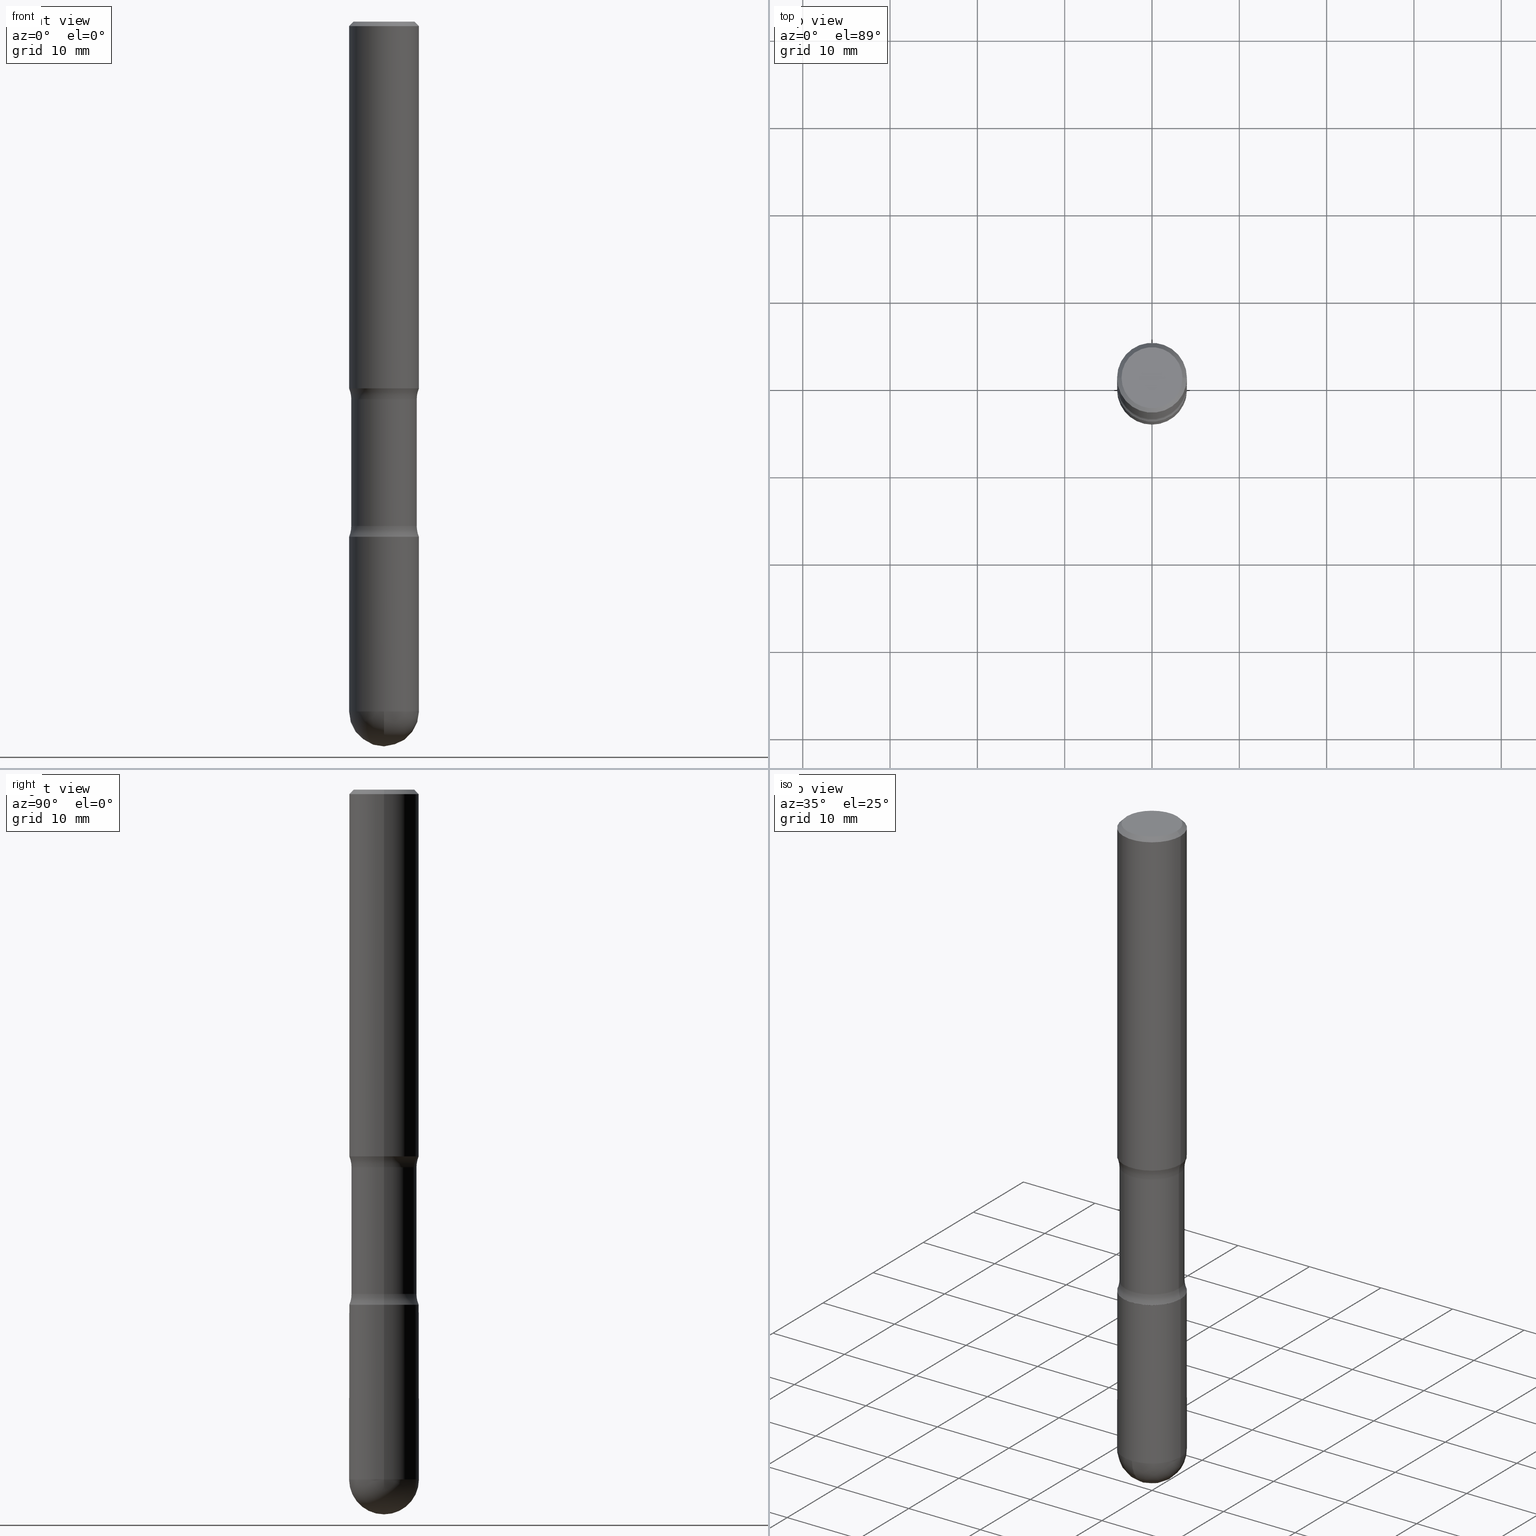
[diagram: canonical four-view strip — front | top / right | iso, engineering-drawing reading convention]
A machine part, canonical four-view strip (front | top / right | iso — engineering-drawing reading convention). The complete STEP part file that produces these views, byte-faithful:
ISO-10303-21;
HEADER;
FILE_DESCRIPTION (( 'STEP AP203' ),
    '1' );
FILE_NAME ('44930.STEP',
    '2024-02-29T19:26:09',
    ( '' ),
    ( '' ),
    'SwSTEP 2.0',
    'SolidWorks 2023',
    '' );
FILE_SCHEMA (( 'CONFIG_CONTROL_DESIGN' ));
ENDSEC;

DATA;
#1 = DIRECTION ( 'NONE',  ( 2.445468806185136597E-29, -3.491481338843145583E-15, -1.000000000000000000 ) ) ;
#2 = VERTEX_POINT ( 'NONE', #517 ) ;
#3 = AXIS2_PLACEMENT_3D ( 'NONE', #345, #522, #561 ) ;
#4 = DIRECTION ( 'NONE',  ( 2.445468806185136597E-29, -3.491481338843145583E-15, -1.000000000000000000 ) ) ;
#5 = EDGE_LOOP ( 'NONE', ( #500, #228, #358, #541 ) ) ;
#6 = CLOSED_SHELL ( 'NONE', ( #437, #188, #328, #446, #356, #372, #322, #111, #266, #260, #231, #336, #213, #346 ) ) ;
#7 = COORDINATED_UNIVERSAL_TIME_OFFSET ( 5, 0, .BEHIND. ) ;
#8 = AXIS2_PLACEMENT_3D ( 'NONE', #48, #52, #219 ) ;
#9 = DIRECTION ( 'NONE',  ( 2.445468806185136597E-29, -3.491481338843145583E-15, -1.000000000000000000 ) ) ;
#10 = ORIENTED_EDGE ( 'NONE', *, *, #440, .F. ) ;
#11 = DIRECTION ( 'NONE',  ( -0.7071067811865469066, 2.468850131082250355E-15, -0.7071067811865481278 ) ) ;
#12 = ORIENTED_EDGE ( 'NONE', *, *, #527, .T. ) ;
#13 = CARTESIAN_POINT ( 'NONE',  ( 5.560531927865903420E-29, -7.938965899332559433E-15, -2.273810205144337626 ) ) ;
#14 = ORIENTED_EDGE ( 'NONE', *, *, #439, .F. ) ;
#15 = APPROVAL_PERSON_ORGANIZATION ( #525, #290, #559 ) ;
#16 = EDGE_CURVE ( 'NONE', #363, #115, #334, .T. ) ;
#17 = DIRECTION ( 'NONE',  ( 2.445468806185136597E-29, -3.491481338843145583E-15, -1.000000000000000000 ) ) ;
#18 = CIRCLE ( 'NONE', #167, 0.1574999999999994182 ) ;
#19 = ORIENTED_EDGE ( 'NONE', *, *, #431, .F. ) ;
#20 = CARTESIAN_POINT ( 'NONE',  ( 7.619357398388695210E-29, -1.083992931945137203E-14, -3.110199999999999854 ) ) ;
#21 = EDGE_CURVE ( 'NONE', #68, #295, #87, .T. ) ;
#22 = ORIENTED_EDGE ( 'NONE', *, *, #171, .F. ) ;
#23 = CARTESIAN_POINT ( 'NONE',  ( 5.680334943006836279E-29, -8.110012853864858834E-15, -2.322799999999999976 ) ) ;
#24 = CYLINDRICAL_SURFACE ( 'NONE', #142, 0.1574999999999994738 ) ;
#25 = APPROVAL_PERSON_ORGANIZATION ( #383, #122, #209 ) ;
#26 = CC_DESIGN_PERSON_AND_ORGANIZATION_ASSIGNMENT ( #563, #392, ( #270 ) ) ;
#27 = DIRECTION ( 'NONE',  ( -1.000000000000000000, 6.982962677686266711E-15, -4.883557194083112901E-29 ) ) ;
#28 = AXIS2_PLACEMENT_3D ( 'NONE', #388, #127, #395 ) ;
#29 = ORIENTED_EDGE ( 'NONE', *, *, #172, .T. ) ;
#30 = DIRECTION ( 'NONE',  ( -2.445468806185136597E-29, 3.491481338843145583E-15, 1.000000000000000000 ) ) ;
#31 = CARTESIAN_POINT ( 'NONE',  ( 0.000000000000000000, 0.000000000000000000, 0.000000000000000000 ) ) ;
#32 = ADVANCED_BREP_SHAPE_REPRESENTATION ( '44930', ( #77, #462, #267 ), #538 ) ;
#33 = AXIS2_PLACEMENT_3D ( 'NONE', #419, #30, #282 ) ;
#34 = CIRCLE ( 'NONE', #125, 0.1574999999999994738 ) ;
#35 = DIRECTION ( 'NONE',  ( -1.000000000000000000, 6.860497997771531562E-15, 0.000000000000000000 ) ) ;
#36 = DIRECTION ( 'NONE',  ( 1.000000000000000000, -6.982962677686261977E-15, 0.000000000000000000 ) ) ;
#37 = DIRECTION ( 'NONE',  ( 2.438088387897960049E-29, -3.491481338843145188E-15, -1.000000000000000000 ) ) ;
#38 = CIRCLE ( 'NONE', #350, 0.1474999999999997424 ) ;
#39 = AXIS2_PLACEMENT_3D ( 'NONE', #75, #117, #83 ) ;
#40 =( CONVERSION_BASED_UNIT ( 'INCH', #340 ) LENGTH_UNIT ( ) NAMED_UNIT ( #496 ) );
#41 = ADVANCED_FACE ( 'NONE', ( #338 ), #24, .T. ) ;
#42 = CARTESIAN_POINT ( 'NONE',  ( 0.000000000000000000, 0.000000000000000000, 0.000000000000000000 ) ) ;
#43 = DIRECTION ( 'NONE',  ( 2.445468806185136597E-29, -3.491481338843145583E-15, -1.000000000000000000 ) ) ;
#44 = AXIS2_PLACEMENT_3D ( 'NONE', #344, #37, #347 ) ;
#45 =( NAMED_UNIT ( * ) SI_UNIT ( $, .STERADIAN. ) SOLID_ANGLE_UNIT ( ) );
#46 = DIRECTION ( 'NONE',  ( -1.000000000000000000, 6.982962677686269866E-15, 0.000000000000000000 ) ) ;
#47 = AXIS2_PLACEMENT_3D ( 'NONE', #23, #64, #502 ) ;
#48 = CARTESIAN_POINT ( 'NONE',  ( 5.679476400061730502E-29, -8.108787082076705030E-15, -2.322448925006553644 ) ) ;
#49 = EDGE_CURVE ( 'NONE', #164, #441, #548, .T. ) ;
#50 = EDGE_CURVE ( 'NONE', #68, #363, #327, .T. ) ;
#51 = AXIS2_PLACEMENT_3D ( 'NONE', #331, #297, #387 ) ;
#52 = DIRECTION ( 'NONE',  ( 2.445468806185136597E-29, -3.491481338843145583E-15, -1.000000000000000000 ) ) ;
#53 = ORIENTED_EDGE ( 'NONE', *, *, #552, .F. ) ;
#54 = CIRCLE ( 'NONE', #454, 0.1374999999999997335 ) ;
#55 = FACE_OUTER_BOUND ( 'NONE', #58, .T. ) ;
#56 = VERTEX_POINT ( 'NONE', #339 ) ;
#57 = DIRECTION ( 'NONE',  ( -2.438088387897960049E-29, 3.491481338843145188E-15, 1.000000000000000000 ) ) ;
#58 = EDGE_LOOP ( 'NONE', ( #535, #411, #369, #157 ) ) ;
#59 = DIRECTION ( 'NONE',  ( 2.445468806185136597E-29, -3.491481338843145583E-15, -1.000000000000000000 ) ) ;
#60 = EDGE_LOOP ( 'NONE', ( #19, #514, #137, #504 ) ) ;
#61 = DIRECTION ( 'NONE',  ( -1.000000000000000000, 7.105427357601001070E-15, -4.926315508542082329E-29 ) ) ;
#62 = VECTOR ( 'NONE', #11, 39.37007874015748143 ) ;
#63 = VERTEX_POINT ( 'NONE', #121 ) ;
#64 = DIRECTION ( 'NONE',  ( -2.445468806185136597E-29, 3.491481338843145583E-15, 1.000000000000000000 ) ) ;
#65 = ORIENTED_EDGE ( 'NONE', *, *, #171, .T. ) ;
#66 = EDGE_CURVE ( 'NONE', #295, #451, #480, .T. ) ;
#67 = CARTESIAN_POINT ( 'NONE',  ( -0.1574999999999994182, -8.365504248145252306E-15, -3.110199999999999854 ) ) ;
#68 = VERTEX_POINT ( 'NONE', #254 ) ;
#69 = DIRECTION ( 'NONE',  ( -1.000000000000000000, 6.982962677686265922E-15, -4.876176775795935793E-29 ) ) ;
#70 = AXIS2_PLACEMENT_3D ( 'NONE', #86, #78, #341 ) ;
#71 = EDGE_LOOP ( 'NONE', ( #557, #293, #74, #459, #352 ) ) ;
#72 = DIRECTION ( 'NONE',  ( -2.445468806185136597E-29, 3.491481338843145583E-15, 1.000000000000000000 ) ) ;
#73 = EDGE_CURVE ( 'NONE', #453, #355, #128, .T. ) ;
#74 = ORIENTED_EDGE ( 'NONE', *, *, #440, .T. ) ;
#75 = CARTESIAN_POINT ( 'NONE',  ( 0.2724999999999879741, -7.813697052702104664E-15, -1.702489794855663430 ) ) ;
#76 =( NAMED_UNIT ( * ) PLANE_ANGLE_UNIT ( ) SI_UNIT ( $, .RADIAN. ) );
#77 = MANIFOLD_SOLID_BREP ( 'Body-Move/Copy2[1]', #175 ) ;
#78 = DIRECTION ( 'NONE',  ( 2.445468806185136597E-29, -3.491481338843145583E-15, -1.000000000000000000 ) ) ;
#79 = VECTOR ( 'NONE', #487, 39.37007874015748143 ) ;
#80 = DIRECTION ( 'NONE',  ( 2.445468806185136597E-29, -3.491481338843145583E-15, -1.000000000000000000 ) ) ;
#81 = CIRCLE ( 'NONE', #33, 0.1574999999999994182 ) ;
#82 = APPROVAL_STATUS ( 'not_yet_approved' ) ;
#83 = DIRECTION ( 'NONE',  ( -1.000000000000000000, 6.860497997771532351E-15, 0.000000000000000000 ) ) ;
#84 = DATE_AND_TIME ( #342, #323 ) ;
#85 = APPROVAL_PERSON_ORGANIZATION ( #532, #371, #396 ) ;
#86 = CARTESIAN_POINT ( 'NONE',  ( 4.043582671027126564E-29, -5.773164393777145805E-15, -1.653500000000001302 ) ) ;
#87 = CIRCLE ( 'NONE', #491, 0.1574999999999994182 ) ;
#88 = CIRCLE ( 'NONE', #70, 0.1575000000000000011 ) ;
#89 = DATE_AND_TIME ( #218, #426 ) ;
#90 = DIRECTION ( 'NONE',  ( -2.445468806185136597E-29, 3.491481338843145583E-15, 1.000000000000000000 ) ) ;
#91 = APPLICATION_CONTEXT ( 'configuration controlled 3d designs of mechanical parts and assemblies' ) ;
#92 = AXIS2_PLACEMENT_3D ( 'NONE', #547, #27, #373 ) ;
#93 = PERSON_AND_ORGANIZATION_ROLE ( 'creator' ) ;
#94 = FACE_OUTER_BOUND ( 'NONE', #5, .T. ) ;
#95 = ORIENTED_EDGE ( 'NONE', *, *, #49, .T. ) ;
#96 = DIRECTION ( 'NONE',  ( -1.000000000000000000, 6.982962677686265133E-15, 0.000000000000000000 ) ) ;
#97 = EDGE_LOOP ( 'NONE', ( #275, #201 ) ) ;
#98 = EDGE_CURVE ( 'NONE', #320, #149, #38, .T. ) ;
#99 = FACE_OUTER_BOUND ( 'NONE', #466, .T. ) ;
#100 = ORIENTED_EDGE ( 'NONE', *, *, #542, .T. ) ;
#101 = DIRECTION ( 'NONE',  ( 2.445468806185136597E-29, -3.491481338843145583E-15, -1.000000000000000000 ) ) ;
#102 = EDGE_LOOP ( 'NONE', ( #151, #181, #269, #277 ) ) ;
#103 = DIRECTION ( 'NONE',  ( 6.860497997771531562E-15, 1.000000000000000000, -3.491481338843145583E-15 ) ) ;
#104 = ORIENTED_EDGE ( 'NONE', *, *, #248, .T. ) ;
#105 = VECTOR ( 'NONE', #425, 39.37007874015748143 ) ;
#106 = AXIS2_PLACEMENT_3D ( 'NONE', #564, #168, #470 ) ;
#107 = VERTEX_POINT ( 'NONE', #348 ) ;
#108 = CARTESIAN_POINT ( 'NONE',  ( 0.2724999999999985767, -9.808451603725290676E-15, -2.273810205144337626 ) ) ;
#109 = VERTEX_POINT ( 'NONE', #247 ) ;
#110 = DIRECTION ( 'NONE',  ( 2.438088387897960049E-29, -3.491481338843145188E-15, -1.000000000000000000 ) ) ;
#111 = ADVANCED_FACE ( 'NONE', ( #178 ), #528, .T. ) ;
#112 = DIRECTION ( 'NONE',  ( -2.445468806185136597E-29, 3.491481338843145583E-15, 1.000000000000000000 ) ) ;
#113 = DIRECTION ( 'NONE',  ( -2.445468806185136597E-29, 3.491481338843145583E-15, 1.000000000000000000 ) ) ;
#114 = CIRCLE ( 'NONE', #435, 0.1374999999999997335 ) ;
#115 = VERTEX_POINT ( 'NONE', #208 ) ;
#116 = ORIENTED_EDGE ( 'NONE', *, *, #420, .F. ) ;
#117 = DIRECTION ( 'NONE',  ( 6.860497997771531562E-15, 1.000000000000000000, -3.491481338843145583E-15 ) ) ;
#118 = DIRECTION ( 'NONE',  ( 1.000000000000000000, 0.000000000000000000, 0.000000000000000000 ) ) ;
#119 = LINE ( 'NONE', #349, #79 ) ;
#120 = AXIS2_PLACEMENT_3D ( 'NONE', #438, #90, #319 ) ;
#121 = CARTESIAN_POINT ( 'NONE',  ( 0.1374999999999997335, -1.046838268059730717E-15, 7.017535886221985357E-30 ) ) ;
#122 = APPROVAL ( #82, 'UNSPECIFIED' ) ;
#123 = APPROVAL_STATUS ( 'not_yet_approved' ) ;
#124 = CARTESIAN_POINT ( 'NONE',  ( 4.890937612370288047E-31, -6.982962677686311331E-17, -0.02000000000000005940 ) ) ;
#125 = AXIS2_PLACEMENT_3D ( 'NONE', #20, #61, #452 ) ;
#126 = CC_DESIGN_SECURITY_CLASSIFICATION ( #314, ( #239 ) ) ;
#127 = DIRECTION ( 'NONE',  ( -6.982962677686266711E-15, -1.000000000000000000, 3.491481338843145583E-15 ) ) ;
#128 = CIRCLE ( 'NONE', #280, 0.1474999999999996314 ) ;
#129 = AXIS2_PLACEMENT_3D ( 'NONE', #492, #310, #180 ) ;
#130 = CC_DESIGN_PERSON_AND_ORGANIZATION_ASSIGNMENT ( #429, #207, ( #364 ) ) ;
#131 = SHAPE_DEFINITION_REPRESENTATION ( #152, #32 ) ;
#132 = FACE_OUTER_BOUND ( 'NONE', #495, .T. ) ;
#133 = ORIENTED_EDGE ( 'NONE', *, *, #391, .F. ) ;
#134 = EDGE_CURVE ( 'NONE', #312, #107, #401, .T. ) ;
#135 = APPROVAL_DATE_TIME ( #445, #371 ) ;
#136 = LINE ( 'NONE', #539, #62 ) ;
#137 = ORIENTED_EDGE ( 'NONE', *, *, #313, .T. ) ;
#138 = EDGE_CURVE ( 'NONE', #230, #187, #179, .T. ) ;
#139 = PERSON_AND_ORGANIZATION_ROLE ( 'design_supplier' ) ;
#140 = DIRECTION ( 'NONE',  ( -6.982962677686266711E-15, -1.000000000000000000, 3.491481338843145583E-15 ) ) ;
#141 = ORIENTED_EDGE ( 'NONE', *, *, #226, .F. ) ;
#142 = AXIS2_PLACEMENT_3D ( 'NONE', #31, #112, #197 ) ;
#143 = AXIS2_PLACEMENT_3D ( 'NONE', #148, #113, #365 ) ;
#144 = CARTESIAN_POINT ( 'NONE',  ( 0.1574999999999997513, -1.150358061425877697E-15, -0.02000000000000005940 ) ) ;
#145 = EDGE_CURVE ( 'NONE', #56, #2, #271, .T. ) ;
#146 = ADVANCED_FACE ( 'NONE', ( #526 ), #523, .T. ) ;
#147 = ORIENTED_EDGE ( 'NONE', *, *, #431, .T. ) ;
#148 = CARTESIAN_POINT ( 'NONE',  ( 5.680334943006836279E-29, -8.110012853864858834E-15, -2.322799999999999976 ) ) ;
#149 = VERTEX_POINT ( 'NONE', #430 ) ;
#150 = CARTESIAN_POINT ( 'NONE',  ( 7.605897080997012116E-29, -1.085920526006995152E-14, -3.110199999999999854 ) ) ;
#151 = ORIENTED_EDGE ( 'NONE', *, *, #449, .F. ) ;
#152 = PRODUCT_DEFINITION_SHAPE ( 'NONE', 'NONE',  #270 ) ;
#153 = LINE ( 'NONE', #553, #311 ) ;
#154 = AXIS2_PLACEMENT_3D ( 'NONE', #268, #9, #229 ) ;
#155 = CARTESIAN_POINT ( 'NONE',  ( 0.1569999999999995843, -9.206337994261599363E-15, -2.322799999999999976 ) ) ;
#156 = LINE ( 'NONE', #499, #427 ) ;
#157 = ORIENTED_EDGE ( 'NONE', *, *, #98, .F. ) ;
#158 = EDGE_CURVE ( 'NONE', #453, #2, #191, .T. ) ;
#159 = ORIENTED_EDGE ( 'NONE', *, *, #477, .F. ) ;
#160 = CC_DESIGN_APPROVAL ( #371, ( #314 ) ) ;
#161 = COORDINATED_UNIVERSAL_TIME_OFFSET ( 5, 0, .BEHIND. ) ;
#162 = VECTOR ( 'NONE', #473, 39.37007874015748143 ) ;
#163 = AXIS2_PLACEMENT_3D ( 'NONE', #13, #101, #227 ) ;
#164 = VERTEX_POINT ( 'NONE', #475 ) ;
#165 = CC_DESIGN_DATE_AND_TIME_ASSIGNMENT ( #89, #262, ( #314 ) ) ;
#166 = APPLICATION_PROTOCOL_DEFINITION ( 'international standard', 'config_control_design', 1994, #91 ) ;
#167 = AXIS2_PLACEMENT_3D ( 'NONE', #150, #72, #507 ) ;
#168 = DIRECTION ( 'NONE',  ( 2.445468806185136597E-29, -3.491481338843145583E-15, -1.000000000000000000 ) ) ;
#169 = LINE ( 'NONE', #337, #105 ) ;
#170 = CARTESIAN_POINT ( 'NONE',  ( 4.043582671027126564E-29, -5.773164393777145805E-15, -1.653500000000001302 ) ) ;
#171 = EDGE_CURVE ( 'NONE', #355, #56, #343, .T. ) ;
#172 = EDGE_CURVE ( 'NONE', #444, #63, #54, .T. ) ;
#173 = DATE_AND_TIME ( #177, #257 ) ;
#174 = PLANE ( 'NONE',  #44 ) ;
#175 = CLOSED_SHELL ( 'NONE', ( #146, #465, #524, #41, #467 ) ) ;
#176 = CONICAL_SURFACE ( 'NONE', #120, 0.1569999999999995843, 0.7853981633977401566 ) ;
#177 = CALENDAR_DATE ( 2024, 29, 2 ) ;
#178 = FACE_OUTER_BOUND ( 'NONE', #102, .T. ) ;
#179 = LINE ( 'NONE', #469, #558 ) ;
#180 = DIRECTION ( 'NONE',  ( -1.000000000000000000, 6.982962677686265922E-15, 0.000000000000000000 ) ) ;
#181 = ORIENTED_EDGE ( 'NONE', *, *, #134, .T. ) ;
#182 = CONICAL_SURFACE ( 'NONE', #143, 0.1569999999999995843, 0.7853981633977401566 ) ;
#183 = PERSON_AND_ORGANIZATION ( #249, #512 ) ;
#184 = CARTESIAN_POINT ( 'NONE',  ( 0.1574999999999997513, -1.150358061425877697E-15, -0.02000000000000005940 ) ) ;
#185 = ORIENTED_EDGE ( 'NONE', *, *, #50, .F. ) ;
#186 = FACE_OUTER_BOUND ( 'NONE', #195, .T. ) ;
#187 = VERTEX_POINT ( 'NONE', #306 ) ;
#188 = ADVANCED_FACE ( 'NONE', ( #566 ), #443, .F. ) ;
#189 = DIRECTION ( 'NONE',  ( -1.000000000000000000, 6.982962677686265922E-15, 0.000000000000000000 ) ) ;
#190 = ORIENTED_EDGE ( 'NONE', *, *, #407, .T. ) ;
#191 = CIRCLE ( 'NONE', #28, 0.1249999999999883565 ) ;
#192 = DIRECTION ( 'NONE',  ( -1.000000000000000000, 6.982962677686266711E-15, 0.000000000000000000 ) ) ;
#193 = ORIENTED_EDGE ( 'NONE', *, *, #98, .T. ) ;
#194 = DIRECTION ( 'NONE',  ( -1.000000000000000000, 6.982962677686265922E-15, -4.876176775795935793E-29 ) ) ;
#195 = EDGE_LOOP ( 'NONE', ( #448, #100, #424, #414 ) ) ;
#196 = DIRECTION ( 'NONE',  ( -2.445468806185136877E-29, 3.491481338843145188E-15, 1.000000000000000000 ) ) ;
#197 = DIRECTION ( 'NONE',  ( 1.000000000000000000, -6.982962677686266711E-15, 4.876176775795935793E-29 ) ) ;
#198 = CARTESIAN_POINT ( 'NONE',  ( 4.163385686168057181E-29, -5.944211348309444418E-15, -1.702489794855663430 ) ) ;
#199 = EDGE_LOOP ( 'NONE', ( #53, #65, #234, #421 ) ) ;
#200 = CARTESIAN_POINT ( 'NONE',  ( -0.1474999999999996314, -4.914224353350722602E-15, -1.702489794855663430 ) ) ;
#201 = ORIENTED_EDGE ( 'NONE', *, *, #458, .T. ) ;
#202 = FACE_OUTER_BOUND ( 'NONE', #546, .T. ) ;
#203 = ORIENTED_EDGE ( 'NONE', *, *, #420, .T. ) ;
#204 = AXIS2_PLACEMENT_3D ( 'NONE', #508, #456, #36 ) ;
#205 = AXIS2_PLACEMENT_3D ( 'NONE', #108, #103, #35 ) ;
#206 = CARTESIAN_POINT ( 'NONE',  ( 7.605897080997012116E-29, -1.085920526006995152E-14, -3.110199999999999854 ) ) ;
#207 = PERSON_AND_ORGANIZATION_ROLE ( 'design_owner' ) ;
#208 = CARTESIAN_POINT ( 'NONE',  ( -0.1574999999999995848, -8.365504248145252306E-15, -2.322799999999999976 ) ) ;
#209 = APPROVAL_ROLE ( '' ) ;
#210 = CARTESIAN_POINT ( 'NONE',  ( 5.560531927865903420E-29, -7.938965899332559433E-15, -2.273810205144337626 ) ) ;
#211 = APPLICATION_PROTOCOL_DEFINITION ( 'international standard', 'config_control_design', 1994, #252 ) ;
#212 = DIRECTION ( 'NONE',  ( 2.445468806185136597E-29, -3.491481338843145583E-15, -1.000000000000000000 ) ) ;
#213 = ADVANCED_FACE ( 'NONE', ( #299 ), #174, .T. ) ;
#214 = COORDINATED_UNIVERSAL_TIME_OFFSET ( 5, 0, .BEHIND. ) ;
#215 = DIRECTION ( 'NONE',  ( 1.000000000000000000, -6.982962677686266711E-15, 4.876176775795935793E-29 ) ) ;
#216 = CARTESIAN_POINT ( 'NONE',  ( 5.679476400061730502E-29, -8.108787082076705030E-15, -2.322448925006553644 ) ) ;
#217 = ORIENTED_EDGE ( 'NONE', *, *, #21, .F. ) ;
#218 = CALENDAR_DATE ( 2024, 29, 2 ) ;
#219 = DIRECTION ( 'NONE',  ( -1.000000000000000000, 6.982962677686265133E-15, 0.000000000000000000 ) ) ;
#220 = EDGE_LOOP ( 'NONE', ( #418, #404, #379, #510 ) ) ;
#221 = AXIS2_PLACEMENT_3D ( 'NONE', #170, #302, #384 ) ;
#222 = PERSON_AND_ORGANIZATION_ROLE ( 'classification_officer' ) ;
#223 = DIRECTION ( 'NONE',  ( 2.445468806185136597E-29, -3.491481338843145583E-15, -1.000000000000000000 ) ) ;
#224 = EDGE_LOOP ( 'NONE', ( #29, #265, #116, #321 ) ) ;
#225 = AXIS2_PLACEMENT_3D ( 'NONE', #198, #324, #288 ) ;
#226 = EDGE_CURVE ( 'NONE', #2, #56, #88, .T. ) ;
#227 = DIRECTION ( 'NONE',  ( -1.000000000000000000, 6.982962677686265922E-15, -4.883557194083112340E-29 ) ) ;
#228 = ORIENTED_EDGE ( 'NONE', *, *, #439, .T. ) ;
#229 = DIRECTION ( 'NONE',  ( -1.000000000000000000, 6.982962677686266711E-15, -4.883557194083112340E-29 ) ) ;
#230 = VERTEX_POINT ( 'NONE', #251 ) ;
#231 = ADVANCED_FACE ( 'NONE', ( #428 ), #412, .F. ) ;
#232 = AXIS2_PLACEMENT_3D ( 'NONE', #42, #303, #215 ) ;
#233 = DIRECTION ( 'NONE',  ( 2.445468806185136597E-29, -3.491481338843145583E-15, -1.000000000000000000 ) ) ;
#234 = ORIENTED_EDGE ( 'NONE', *, *, #145, .T. ) ;
#235 = FACE_OUTER_BOUND ( 'NONE', #97, .T. ) ;
#236 = ORIENTED_EDGE ( 'NONE', *, *, #73, .F. ) ;
#237 = FACE_OUTER_BOUND ( 'NONE', #199, .T. ) ;
#238 = ORIENTED_EDGE ( 'NONE', *, *, #449, .T. ) ;
#239 = PRODUCT_DEFINITION_FORMATION_WITH_SPECIFIED_SOURCE ( 'ANY', '', #364, .NOT_KNOWN. ) ;
#240 = AXIS2_PLACEMENT_3D ( 'NONE', #378, #233, #550 ) ;
#241 = CARTESIAN_POINT ( 'NONE',  ( -0.1374999999999997335, 9.601573681818597005E-16, -6.704743066719399103E-30 ) ) ;
#242 = EDGE_LOOP ( 'NONE', ( #22, #236, #488, #317 ) ) ;
#243 = EDGE_CURVE ( 'NONE', #107, #2, #119, .T. ) ;
#244 = LINE ( 'NONE', #329, #422 ) ;
#245 = DIRECTION ( 'NONE',  ( -2.445468806185136597E-29, 3.491481338843145583E-15, 1.000000000000000000 ) ) ;
#246 = CARTESIAN_POINT ( 'NONE',  ( 4.163385686168057181E-29, -5.944211348309444418E-15, -1.702489794855663430 ) ) ;
#247 = CARTESIAN_POINT ( 'NONE',  ( 8.011253169890140040E-29, -1.138019353677588070E-14, -3.267699999999999605 ) ) ;
#248 = EDGE_CURVE ( 'NONE', #230, #164, #463, .T. ) ;
#249 = PERSON ( 'UNSPECIFIED', 'UNSPECIFIED', 'UNSPECIFIED', ('UNSPECIFIED'), ('UNSPECIFIED'), ('UNSPECIFIED') ) ;
#250 = CONICAL_SURFACE ( 'NONE', #549, 0.1574999999999997513, 0.7853981633974473908 ) ;
#251 = CARTESIAN_POINT ( 'NONE',  ( -0.1569999999999995843, -6.992600603895925225E-15, -2.322799999999999976 ) ) ;
#252 = APPLICATION_CONTEXT ( 'configuration controlled 3d designs of mechanical parts and assemblies' ) ;
#253 = MECHANICAL_CONTEXT ( 'NONE', #252, 'mechanical' ) ;
#254 = CARTESIAN_POINT ( 'NONE',  ( 0.1574999999999994182, -1.058442567870298871E-14, -3.110199999999999854 ) ) ;
#255 = APPROVAL_DATE_TIME ( #305, #122 ) ;
#256 = CARTESIAN_POINT ( 'NONE',  ( 0.000000000000000000, 0.000000000000000000, 0.000000000000000000 ) ) ;
#257 = LOCAL_TIME ( 14, 26, 9.000000000000000000, #161 ) ;
#258 = APPROVAL_DATE_TIME ( #84, #290 ) ;
#259 = DIRECTION ( 'NONE',  ( -2.445468806185136597E-29, 3.491481338843145583E-15, 1.000000000000000000 ) ) ;
#260 = ADVANCED_FACE ( 'NONE', ( #55 ), #403, .T. ) ;
#261 = CONICAL_SURFACE ( 'NONE', #382, 0.1574999999999997513, 0.7853981633974473908 ) ;
#262 = DATE_TIME_ROLE ( 'classification_date' ) ;
#263 = DIRECTION ( 'NONE',  ( -1.000000000000000000, 6.982962677686266711E-15, 0.000000000000000000 ) ) ;
#264 = DIRECTION ( 'NONE',  ( 2.445468806185136597E-29, -3.491481338843145583E-15, -1.000000000000000000 ) ) ;
#265 = ORIENTED_EDGE ( 'NONE', *, *, #381, .T. ) ;
#266 = ADVANCED_FACE ( 'NONE', ( #359 ), #393, .F. ) ;
#267 = AXIS2_PLACEMENT_3D ( 'NONE', #519, #474, #118 ) ;
#268 = CARTESIAN_POINT ( 'NONE',  ( 4.163385686168057181E-29, -5.944211348309444418E-15, -1.702489794855663430 ) ) ;
#269 = ORIENTED_EDGE ( 'NONE', *, *, #243, .T. ) ;
#270 = PRODUCT_DEFINITION ( 'UNKNOWN', '', #239, #284 ) ;
#271 = CIRCLE ( 'NONE', #221, 0.1575000000000000011 ) ;
#272 = EDGE_CURVE ( 'NONE', #187, #441, #361, .T. ) ;
#273 = SECURITY_CLASSIFICATION_LEVEL ( 'unclassified' ) ;
#274 = PLANE ( 'NONE',  #505 ) ;
#275 = ORIENTED_EDGE ( 'NONE', *, *, #16, .T. ) ;
#276 = FACE_OUTER_BOUND ( 'NONE', #360, .T. ) ;
#277 = ORIENTED_EDGE ( 'NONE', *, *, #145, .F. ) ;
#278 = SPHERICAL_SURFACE ( 'NONE', #92, 0.1574999999999994738 ) ;
#279 = EDGE_LOOP ( 'NONE', ( #159, #12, #217, #10 ) ) ;
#280 = AXIS2_PLACEMENT_3D ( 'NONE', #518, #212, #386 ) ;
#281 = PRODUCT_RELATED_PRODUCT_CATEGORY ( 'detail', '', ( #364 ) ) ;
#282 = DIRECTION ( 'NONE',  ( 1.000000000000000000, -6.982962677686262766E-15, 0.000000000000000000 ) ) ;
#283 = ORIENTED_EDGE ( 'NONE', *, *, #172, .F. ) ;
#284 = DESIGN_CONTEXT ( 'detailed design', #91, 'design' ) ;
#285 = CIRCLE ( 'NONE', #47, 0.1574999999999995848 ) ;
#286 = CARTESIAN_POINT ( 'NONE',  ( 0.000000000000000000, 0.000000000000000000, 0.000000000000000000 ) ) ;
#287 = CARTESIAN_POINT ( 'NONE',  ( 0.1574999999999994738, -1.099816621735583339E-15, 7.679978421878572810E-30 ) ) ;
#288 = DIRECTION ( 'NONE',  ( -1.000000000000000000, 6.982962677686266711E-15, -4.883557194083112340E-29 ) ) ;
#289 = ORIENTED_EDGE ( 'NONE', *, *, #375, .F. ) ;
#290 = APPROVAL ( #123, 'UNSPECIFIED' ) ;
#291 = AXIS2_PLACEMENT_3D ( 'NONE', #397, #140, #405 ) ;
#292 = DIRECTION ( 'NONE',  ( 0.7071067811865469066, -7.319954787623254468E-15, -0.7071067811865481278 ) ) ;
#293 = ORIENTED_EDGE ( 'NONE', *, *, #476, .T. ) ;
#294 = SPHERICAL_SURFACE ( 'NONE', #3, 0.1574999999999994738 ) ;
#295 = VERTEX_POINT ( 'NONE', #442 ) ;
#296 = CC_DESIGN_PERSON_AND_ORGANIZATION_ASSIGNMENT ( #434, #93, ( #239 ) ) ;
#297 = DIRECTION ( 'NONE',  ( 1.000000000000000000, -6.982962677686265922E-15, 4.883557194083112340E-29 ) ) ;
#298 = CIRCLE ( 'NONE', #51, 0.1574999999999994738 ) ;
#299 = FACE_OUTER_BOUND ( 'NONE', #498, .T. ) ;
#300 = CARTESIAN_POINT ( 'NONE',  ( -1.119104808822077337E-15, -0.1575000000000102707, -3.110199999999999410 ) ) ;
#301 = CIRCLE ( 'NONE', #540, 0.1574999999999997513 ) ;
#302 = DIRECTION ( 'NONE',  ( 2.445468806185136597E-29, -3.491481338843145583E-15, -1.000000000000000000 ) ) ;
#303 = DIRECTION ( 'NONE',  ( -2.445468806185136597E-29, 3.491481338843145583E-15, 1.000000000000000000 ) ) ;
#304 = EDGE_CURVE ( 'NONE', #444, #107, #136, .T. ) ;
#305 = DATE_AND_TIME ( #556, #367 ) ;
#306 = CARTESIAN_POINT ( 'NONE',  ( -0.1573510749934464159, -7.010010398103656893E-15, -2.322448925006553644 ) ) ;
#307 = FACE_OUTER_BOUND ( 'NONE', #224, .T. ) ;
#308 = CARTESIAN_POINT ( 'NONE',  ( 0.1474999999999996314, -6.904913815703451450E-15, -1.702489794855663430 ) ) ;
#309 = ORIENTED_EDGE ( 'NONE', *, *, #49, .F. ) ;
#310 = DIRECTION ( 'NONE',  ( 2.445468806185136597E-29, -3.491481338843145583E-15, -1.000000000000000000 ) ) ;
#311 = VECTOR ( 'NONE', #415, 39.37007874015748143 ) ;
#312 = VERTEX_POINT ( 'NONE', #144 ) ;
#313 = EDGE_CURVE ( 'NONE', #187, #149, #516, .T. ) ;
#314 = SECURITY_CLASSIFICATION ( '', '', #273 ) ;
#315 = DIRECTION ( 'NONE',  ( -1.000000000000000000, 6.982962677686266711E-15, 0.000000000000000000 ) ) ;
#316 = AXIS2_PLACEMENT_3D ( 'NONE', #124, #394, #436 ) ;
#317 = ORIENTED_EDGE ( 'NONE', *, *, #226, .T. ) ;
#318 = CIRCLE ( 'NONE', #205, 0.1249999999999988343 ) ;
#319 = DIRECTION ( 'NONE',  ( 1.000000000000000000, -6.982962677686265133E-15, 0.000000000000000000 ) ) ;
#320 = VERTEX_POINT ( 'NONE', #450 ) ;
#321 = ORIENTED_EDGE ( 'NONE', *, *, #304, .F. ) ;
#322 = ADVANCED_FACE ( 'NONE', ( #94 ), #261, .T. ) ;
#323 = LOCAL_TIME ( 14, 26, 9.000000000000000000, #478 ) ;
#324 = DIRECTION ( 'NONE',  ( 2.445468806185136597E-29, -3.491481338843145583E-15, -1.000000000000000000 ) ) ;
#325 = EDGE_LOOP ( 'NONE', ( #289, #147, #193, #544 ) ) ;
#326 = DIRECTION ( 'NONE',  ( 2.445468806185136597E-29, -3.491481338843145583E-15, -1.000000000000000000 ) ) ;
#327 = LINE ( 'NONE', #287, #162 ) ;
#328 = ADVANCED_FACE ( 'NONE', ( #186 ), #362, .T. ) ;
#329 = CARTESIAN_POINT ( 'NONE',  ( 0.1574999999999998901, -9.190541288513873036E-15, -2.322799999999999976 ) ) ;
#330 = ORIENTED_EDGE ( 'NONE', *, *, #391, .T. ) ;
#331 = CARTESIAN_POINT ( 'NONE',  ( 7.619357398388695210E-29, -1.083992931945137203E-14, -3.110199999999999854 ) ) ;
#332 = DIRECTION ( 'NONE',  ( 0.7071067811867537412, -2.468850131084417751E-15, 0.7071067811863410713 ) ) ;
#333 = CC_DESIGN_APPROVAL ( #290, ( #239 ) ) ;
#334 = CIRCLE ( 'NONE', #204, 0.1574999999999995848 ) ;
#335 = CIRCLE ( 'NONE', #521, 0.1474999999999997424 ) ;
#336 = ADVANCED_FACE ( 'NONE', ( #132 ), #176, .T. ) ;
#337 = CARTESIAN_POINT ( 'NONE',  ( 0.1474999999999996869, -9.121936308536156521E-15, -2.322799999999999976 ) ) ;
#338 = FACE_OUTER_BOUND ( 'NONE', #71, .T. ) ;
#339 = CARTESIAN_POINT ( 'NONE',  ( 0.1575000000000000011, -4.002025444926019936E-15, -1.653500000000001302 ) ) ;
#340 = LENGTH_MEASURE_WITH_UNIT ( LENGTH_MEASURE( 0.02539999999999999897 ), #468 );
#341 = DIRECTION ( 'NONE',  ( -1.000000000000000000, 6.982962677686268288E-15, 0.000000000000000000 ) ) ;
#342 = CALENDAR_DATE ( 2024, 29, 2 ) ;
#343 = CIRCLE ( 'NONE', #39, 0.1249999999999883565 ) ;
#344 = CARTESIAN_POINT ( 'NONE',  ( 1.096325140396797721E-15, 0.1569999999999914797, -2.322800000000000864 ) ) ;
#345 = CARTESIAN_POINT ( 'NONE',  ( 7.619357398388695210E-29, -1.083992931945137203E-14, -3.110199999999999854 ) ) ;
#346 = ADVANCED_FACE ( 'NONE', ( #99 ), #274, .T. ) ;
#347 = DIRECTION ( 'NONE',  ( -1.000000000000000000, 6.982962677686265922E-15, -4.876176775795935793E-29 ) ) ;
#348 = CARTESIAN_POINT ( 'NONE',  ( -0.1574999999999997513, 1.029986994958722210E-15, -0.02000000000000005940 ) ) ;
#349 = CARTESIAN_POINT ( 'NONE',  ( -0.1574999999999998901, -7.010196232129272143E-15, -2.322799999999999976 ) ) ;
#350 = AXIS2_PLACEMENT_3D ( 'NONE', #210, #80, #46 ) ;
#351 = VECTOR ( 'NONE', #292, 39.37007874015748143 ) ;
#352 = ORIENTED_EDGE ( 'NONE', *, *, #458, .F. ) ;
#353 = COORDINATED_UNIVERSAL_TIME_OFFSET ( 5, 0, .BEHIND. ) ;
#354 = CARTESIAN_POINT ( 'NONE',  ( 4.890937612370288047E-31, -6.982962677686311331E-17, -0.02000000000000005940 ) ) ;
#355 = VERTEX_POINT ( 'NONE', #308 ) ;
#356 = ADVANCED_FACE ( 'NONE', ( #276 ), #534, .T. ) ;
#357 = CARTESIAN_POINT ( 'NONE',  ( 5.680334943006835158E-29, -8.110012853864858834E-15, -2.322799999999999976 ) ) ;
#358 = ORIENTED_EDGE ( 'NONE', *, *, #304, .T. ) ;
#359 = FACE_OUTER_BOUND ( 'NONE', #242, .T. ) ;
#360 = EDGE_LOOP ( 'NONE', ( #203, #238, #141, #537 ) ) ;
#361 = CIRCLE ( 'NONE', #482, 0.1573510749934464159 ) ;
#362 = CYLINDRICAL_SURFACE ( 'NONE', #129, 0.1474999999999996869 ) ;
#363 = VERTEX_POINT ( 'NONE', #543 ) ;
#364 = PRODUCT ( '44930', '44930', '', ( #253 ) ) ;
#365 = DIRECTION ( 'NONE',  ( 1.000000000000000000, -6.982962677686265133E-15, 0.000000000000000000 ) ) ;
#366 = ORIENTED_EDGE ( 'NONE', *, *, #138, .F. ) ;
#367 = LOCAL_TIME ( 14, 26, 9.000000000000000000, #214 ) ;
#368 = CARTESIAN_POINT ( 'NONE',  ( 2.866960677175461413E-29, -1.213892492985429931E-14, -2.322799999999999976 ) ) ;
#369 = ORIENTED_EDGE ( 'NONE', *, *, #494, .T. ) ;
#370 = AXIS2_PLACEMENT_3D ( 'NONE', #530, #59, #96 ) ;
#371 = APPROVAL ( #481, 'UNSPECIFIED' ) ;
#372 = ADVANCED_FACE ( 'NONE', ( #307 ), #250, .T. ) ;
#373 = DIRECTION ( 'NONE',  ( 6.982962677686266711E-15, 1.000000000000000000, -3.469013325287964732E-15 ) ) ;
#374 = ORIENTED_EDGE ( 'NONE', *, *, #248, .F. ) ;
#375 = EDGE_CURVE ( 'NONE', #441, #187, #493, .T. ) ;
#376 = CARTESIAN_POINT ( 'NONE',  ( 4.890937612370288047E-31, -6.982962677686311331E-17, -0.02000000000000005940 ) ) ;
#377 = ORIENTED_EDGE ( 'NONE', *, *, #375, .T. ) ;
#378 = CARTESIAN_POINT ( 'NONE',  ( 5.680334943006836279E-29, -8.110012853864858834E-15, -2.322799999999999976 ) ) ;
#379 = ORIENTED_EDGE ( 'NONE', *, *, #476, .F. ) ;
#380 = AXIS2_PLACEMENT_3D ( 'NONE', #206, #259, #433 ) ;
#381 = EDGE_CURVE ( 'NONE', #63, #312, #400, .T. ) ;
#382 = AXIS2_PLACEMENT_3D ( 'NONE', #354, #223, #315 ) ;
#383 = PERSON_AND_ORGANIZATION ( #249, #512 ) ;
#384 = DIRECTION ( 'NONE',  ( -1.000000000000000000, 6.982962677686268288E-15, 0.000000000000000000 ) ) ;
#385 = DIRECTION ( 'NONE',  ( 2.445468806185136597E-29, -3.491481338843145583E-15, -1.000000000000000000 ) ) ;
#386 = DIRECTION ( 'NONE',  ( -1.000000000000000000, 6.982962677686268288E-15, 0.000000000000000000 ) ) ;
#387 = DIRECTION ( 'NONE',  ( 6.982962677686266711E-15, 1.000000000000000000, 0.000000000000000000 ) ) ;
#388 = CARTESIAN_POINT ( 'NONE',  ( -0.2724999999999879741, -4.041354018640020516E-15, -1.702489794855663430 ) ) ;
#389 = CC_DESIGN_PERSON_AND_ORGANIZATION_ASSIGNMENT ( #490, #139, ( #239 ) ) ;
#390 = EDGE_CURVE ( 'NONE', #149, #320, #335, .T. ) ;
#391 = EDGE_CURVE ( 'NONE', #164, #230, #471, .T. ) ;
#392 = PERSON_AND_ORGANIZATION_ROLE ( 'creator' ) ;
#393 = TOROIDAL_SURFACE ( 'NONE', #154, 0.2724999999999879741, 0.1249999999999883565 ) ;
#394 = DIRECTION ( 'NONE',  ( 2.445468806185136597E-29, -3.491481338843145583E-15, -1.000000000000000000 ) ) ;
#395 = DIRECTION ( 'NONE',  ( 1.000000000000000000, -6.982962677686265133E-15, 0.000000000000000000 ) ) ;
#396 = APPROVAL_ROLE ( '' ) ;
#397 = CARTESIAN_POINT ( 'NONE',  ( -0.2724999999999985767, -6.036108569663060589E-15, -2.273810205144337626 ) ) ;
#398 = ORIENTED_EDGE ( 'NONE', *, *, #138, .T. ) ;
#399 = CALENDAR_DATE ( 2024, 29, 2 ) ;
#400 = LINE ( 'NONE', #184, #351 ) ;
#401 = CIRCLE ( 'NONE', #316, 0.1574999999999997513 ) ;
#402 = ORIENTED_EDGE ( 'NONE', *, *, #66, .T. ) ;
#403 = CYLINDRICAL_SURFACE ( 'NONE', #565, 0.1474999999999996869 ) ;
#404 = ORIENTED_EDGE ( 'NONE', *, *, #477, .T. ) ;
#405 = DIRECTION ( 'NONE',  ( 1.000000000000000000, -6.982962677686265922E-15, 0.000000000000000000 ) ) ;
#406 = ORIENTED_EDGE ( 'NONE', *, *, #16, .F. ) ;
#407 = EDGE_CURVE ( 'NONE', #451, #115, #156, .T. ) ;
#408 = LOCAL_TIME ( 14, 26, 9.000000000000000000, #353 ) ;
#409 = CARTESIAN_POINT ( 'NONE',  ( 5.680334943006835158E-29, -8.110012853864858834E-15, -2.322799999999999976 ) ) ;
#410 = VECTOR ( 'NONE', #332, 39.37007874015748854 ) ;
#411 = ORIENTED_EDGE ( 'NONE', *, *, #552, .T. ) ;
#412 = TOROIDAL_SURFACE ( 'NONE', #163, 0.2724999999999985767, 0.1249999999999988343 ) ;
#413 = FACE_OUTER_BOUND ( 'NONE', #279, .T. ) ;
#414 = ORIENTED_EDGE ( 'NONE', *, *, #494, .F. ) ;
#415 = DIRECTION ( 'NONE',  ( 2.445468806185136877E-29, -3.491481338843145188E-15, -1.000000000000000000 ) ) ;
#416 = CARTESIAN_POINT ( 'NONE',  ( 7.605897080997012116E-29, -1.085920526006995152E-14, -3.110199999999999854 ) ) ;
#417 = FACE_OUTER_BOUND ( 'NONE', #220, .T. ) ;
#418 = ORIENTED_EDGE ( 'NONE', *, *, #527, .F. ) ;
#419 = CARTESIAN_POINT ( 'NONE',  ( 7.605897080997012116E-29, -1.085920526006995152E-14, -3.110199999999999854 ) ) ;
#420 = EDGE_CURVE ( 'NONE', #107, #312, #301, .T. ) ;
#421 = ORIENTED_EDGE ( 'NONE', *, *, #158, .F. ) ;
#422 = VECTOR ( 'NONE', #423, 39.37007874015748143 ) ;
#423 = DIRECTION ( 'NONE',  ( 2.445468806185136877E-29, -3.491481338843145188E-15, -1.000000000000000000 ) ) ;
#424 = ORIENTED_EDGE ( 'NONE', *, *, #390, .F. ) ;
#425 = DIRECTION ( 'NONE',  ( 2.445468806185136877E-29, -3.491481338843145188E-15, -1.000000000000000000 ) ) ;
#426 = LOCAL_TIME ( 14, 26, 9.000000000000000000, #7 ) ;
#427 = VECTOR ( 'NONE', #196, 39.37007874015748143 ) ;
#428 = FACE_OUTER_BOUND ( 'NONE', #60, .T. ) ;
#429 = PERSON_AND_ORGANIZATION ( #249, #512 ) ;
#430 = CARTESIAN_POINT ( 'NONE',  ( -0.1474999999999997424, -6.908978904373836039E-15, -2.273810205144337626 ) ) ;
#431 = EDGE_CURVE ( 'NONE', #441, #320, #318, .T. ) ;
#432 = DATE_TIME_ROLE ( 'creation_date' ) ;
#433 = DIRECTION ( 'NONE',  ( 1.000000000000000000, -6.982962677686262766E-15, 0.000000000000000000 ) ) ;
#434 = PERSON_AND_ORGANIZATION ( #249, #512 ) ;
#435 = AXIS2_PLACEMENT_3D ( 'NONE', #286, #326, #194 ) ;
#436 = DIRECTION ( 'NONE',  ( -1.000000000000000000, 6.982962677686266711E-15, 0.000000000000000000 ) ) ;
#437 = ADVANCED_FACE ( 'NONE', ( #202 ), #182, .T. ) ;
#438 = CARTESIAN_POINT ( 'NONE',  ( 5.680334943006836279E-29, -8.110012853864858834E-15, -2.322799999999999976 ) ) ;
#439 = EDGE_CURVE ( 'NONE', #63, #444, #114, .T. ) ;
#440 = EDGE_CURVE ( 'NONE', #551, #68, #18, .T. ) ;
#441 = VERTEX_POINT ( 'NONE', #457 ) ;
#442 = CARTESIAN_POINT ( 'NONE',  ( 1.099816621735659069E-15, 0.1574999999999886213, -3.110200000000000742 ) ) ;
#443 = TOROIDAL_SURFACE ( 'NONE', #106, 0.2724999999999985767, 0.1249999999999988343 ) ;
#444 = VERTEX_POINT ( 'NONE', #241 ) ;
#445 = DATE_AND_TIME ( #399, #408 ) ;
#446 = ADVANCED_FACE ( 'NONE', ( #237 ), #533, .F. ) ;
#447 = CARTESIAN_POINT ( 'NONE',  ( 9.601573681818597005E-16, 0.1374999999999997335, -4.779444278458813133E-16 ) ) ;
#448 = ORIENTED_EDGE ( 'NONE', *, *, #73, .T. ) ;
#449 = EDGE_CURVE ( 'NONE', #312, #56, #244, .T. ) ;
#450 = CARTESIAN_POINT ( 'NONE',  ( 0.1474999999999997702, -7.953512078492301190E-15, -2.273810205144337626 ) ) ;
#451 = VERTEX_POINT ( 'NONE', #67 ) ;
#452 = DIRECTION ( 'NONE',  ( -7.105427357601000281E-15, -1.000000000000000000, 0.000000000000000000 ) ) ;
#453 = VERTEX_POINT ( 'NONE', #200 ) ;
#454 = AXIS2_PLACEMENT_3D ( 'NONE', #256, #1, #520 ) ;
#455 = DIRECTION ( 'NONE',  ( 2.445468806185136597E-29, -3.491481338843145583E-15, -1.000000000000000000 ) ) ;
#456 = DIRECTION ( 'NONE',  ( -2.445468806185136597E-29, 3.491481338843145583E-15, 1.000000000000000000 ) ) ;
#457 = CARTESIAN_POINT ( 'NONE',  ( 0.1573510749934464159, -9.188293817016442229E-15, -2.322448925006553644 ) ) ;
#458 = EDGE_CURVE ( 'NONE', #115, #363, #285, .T. ) ;
#459 = ORIENTED_EDGE ( 'NONE', *, *, #50, .T. ) ;
#460 = DIRECTION ( 'NONE',  ( 2.445468806185136597E-29, -3.491481338843145583E-15, -1.000000000000000000 ) ) ;
#461 = EDGE_LOOP ( 'NONE', ( #402, #190, #406, #185, #531 ) ) ;
#462 = MANIFOLD_SOLID_BREP ( 'Body-Move/Copy2[2]', #6 ) ;
#463 = CIRCLE ( 'NONE', #370, 0.1569999999999995843 ) ;
#464 = CARTESIAN_POINT ( 'NONE',  ( 5.560531927865903420E-29, -7.938965899332559433E-15, -2.273810205144337626 ) ) ;
#465 = ADVANCED_FACE ( 'NONE', ( #417 ), #278, .T. ) ;
#466 = EDGE_LOOP ( 'NONE', ( #283, #14 ) ) ;
#467 = ADVANCED_FACE ( 'NONE', ( #235 ), #509, .F. ) ;
#468 =( LENGTH_UNIT ( ) NAMED_UNIT ( * ) SI_UNIT ( $, .METRE. ) );
#469 = CARTESIAN_POINT ( 'NONE',  ( -0.1569999999999995843, -6.994460758721504496E-15, -2.322799999999999976 ) ) ;
#470 = DIRECTION ( 'NONE',  ( -1.000000000000000000, 6.982962677686265922E-15, -4.883557194083112340E-29 ) ) ;
#471 = CIRCLE ( 'NONE', #240, 0.1569999999999995843 ) ;
#472 = DIRECTION ( 'NONE',  ( -1.000000000000000000, 6.982962677686268288E-15, 0.000000000000000000 ) ) ;
#473 = DIRECTION ( 'NONE',  ( -2.445468806185136877E-29, 3.491481338843145188E-15, 1.000000000000000000 ) ) ;
#474 = DIRECTION ( 'NONE',  ( 0.000000000000000000, 0.000000000000000000, 1.000000000000000000 ) ) ;
#475 = CARTESIAN_POINT ( 'NONE',  ( 0.1569999999999995843, -9.206950880155677843E-15, -2.322799999999999976 ) ) ;
#476 = EDGE_CURVE ( 'NONE', #451, #551, #81, .T. ) ;
#477 = EDGE_CURVE ( 'NONE', #109, #551, #34, .T. ) ;
#478 = COORDINATED_UNIVERSAL_TIME_OFFSET ( 5, 0, .BEHIND. ) ;
#479 = CARTESIAN_POINT ( 'NONE',  ( 5.680334943006835158E-29, -8.110012853864858834E-15, -2.322799999999999976 ) ) ;
#480 = CIRCLE ( 'NONE', #380, 0.1574999999999994182 ) ;
#481 = APPROVAL_STATUS ( 'not_yet_approved' ) ;
#482 = AXIS2_PLACEMENT_3D ( 'NONE', #216, #536, #485 ) ;
#483 = CARTESIAN_POINT ( 'NONE',  ( 4.890937612370288047E-31, -6.982962677686311331E-17, -0.02000000000000005940 ) ) ;
#484 = AXIS2_PLACEMENT_3D ( 'NONE', #368, #110, #69 ) ;
#485 = DIRECTION ( 'NONE',  ( -1.000000000000000000, 6.982962677686265133E-15, 0.000000000000000000 ) ) ;
#486 = ORIENTED_EDGE ( 'NONE', *, *, #272, .T. ) ;
#487 = DIRECTION ( 'NONE',  ( 2.445468806185136877E-29, -3.491481338843145188E-15, -1.000000000000000000 ) ) ;
#488 = ORIENTED_EDGE ( 'NONE', *, *, #158, .T. ) ;
#489 = CC_DESIGN_APPROVAL ( #122, ( #270 ) ) ;
#490 = PERSON_AND_ORGANIZATION ( #249, #512 ) ;
#491 = AXIS2_PLACEMENT_3D ( 'NONE', #416, #245, #554 ) ;
#492 = CARTESIAN_POINT ( 'NONE',  ( 5.680334943006835158E-29, -8.110012853864858834E-15, -2.322799999999999976 ) ) ;
#493 = CIRCLE ( 'NONE', #8, 0.1573510749934464159 ) ;
#494 = EDGE_CURVE ( 'NONE', #453, #149, #153, .T. ) ;
#495 = EDGE_LOOP ( 'NONE', ( #366, #133, #95, #377 ) ) ;
#496 = DIMENSIONAL_EXPONENTS ( 1.000000000000000000, 0.000000000000000000, 0.000000000000000000, 0.000000000000000000, 0.000000000000000000, 0.000000000000000000, 0.000000000000000000 ) ;
#497 = DIRECTION ( 'NONE',  ( 1.000000000000000000, -6.982962677686265922E-15, 4.876176775795935793E-29 ) ) ;
#498 = EDGE_LOOP ( 'NONE', ( #330, #104 ) ) ;
#499 = CARTESIAN_POINT ( 'NONE',  ( -0.1574999999999994738, 1.119104808822154054E-15, -7.747322767151451761E-30 ) ) ;
#500 = ORIENTED_EDGE ( 'NONE', *, *, #381, .F. ) ;
#501 = AXIS2_PLACEMENT_3D ( 'NONE', #246, #385, #472 ) ;
#502 = DIRECTION ( 'NONE',  ( 1.000000000000000000, -6.982962677686261977E-15, 0.000000000000000000 ) ) ;
#503 = AXIS2_PLACEMENT_3D ( 'NONE', #479, #43, #560 ) ;
#504 = ORIENTED_EDGE ( 'NONE', *, *, #390, .T. ) ;
#505 = AXIS2_PLACEMENT_3D ( 'NONE', #447, #57, #497 ) ;
#506 = UNCERTAINTY_MEASURE_WITH_UNIT (LENGTH_MEASURE( 1.000000000000000082E-05 ), #40, 'distance_accuracy_value', 'NONE');
#507 = DIRECTION ( 'NONE',  ( 1.000000000000000000, -6.982962677686262766E-15, 0.000000000000000000 ) ) ;
#508 = CARTESIAN_POINT ( 'NONE',  ( 5.680334943006836279E-29, -8.110012853864858834E-15, -2.322799999999999976 ) ) ;
#509 = PLANE ( 'NONE',  #484 ) ;
#510 = ORIENTED_EDGE ( 'NONE', *, *, #66, .F. ) ;
#511 = CC_DESIGN_DATE_AND_TIME_ASSIGNMENT ( #173, #432, ( #270 ) ) ;
#512 = ORGANIZATION ( 'UNSPECIFIED', 'UNSPECIFIED', '' ) ;
#513 = DIRECTION ( 'NONE',  ( -1.000000000000000000, 6.982962677686266711E-15, 0.000000000000000000 ) ) ;
#514 = ORIENTED_EDGE ( 'NONE', *, *, #272, .F. ) ;
#515 = CC_DESIGN_PERSON_AND_ORGANIZATION_ASSIGNMENT ( #183, #222, ( #314 ) ) ;
#516 = CIRCLE ( 'NONE', #291, 0.1249999999999988343 ) ;
#517 = CARTESIAN_POINT ( 'NONE',  ( -0.1575000000000000011, -4.673347772041558325E-15, -1.653500000000001302 ) ) ;
#518 = CARTESIAN_POINT ( 'NONE',  ( 4.163385686168057181E-29, -5.944211348309444418E-15, -1.702489794855663430 ) ) ;
#519 = CARTESIAN_POINT ( 'NONE',  ( 0.000000000000000000, 0.000000000000000000, 0.000000000000000000 ) ) ;
#520 = DIRECTION ( 'NONE',  ( -1.000000000000000000, 6.982962677686265922E-15, -4.876176775795935793E-29 ) ) ;
#521 = AXIS2_PLACEMENT_3D ( 'NONE', #464, #455, #545 ) ;
#522 = DIRECTION ( 'NONE',  ( -1.000000000000000000, 6.982962677686266711E-15, -4.883557194083112901E-29 ) ) ;
#523 = CYLINDRICAL_SURFACE ( 'NONE', #232, 0.1574999999999994738 ) ;
#524 = ADVANCED_FACE ( 'NONE', ( #413 ), #294, .T. ) ;
#525 = PERSON_AND_ORGANIZATION ( #249, #512 ) ;
#526 = FACE_OUTER_BOUND ( 'NONE', #461, .T. ) ;
#527 = EDGE_CURVE ( 'NONE', #109, #295, #298, .T. ) ;
#528 = CYLINDRICAL_SURFACE ( 'NONE', #503, 0.1574999999999998901 ) ;
#529 = AXIS2_PLACEMENT_3D ( 'NONE', #409, #17, #192 ) ;
#530 = CARTESIAN_POINT ( 'NONE',  ( 5.680334943006836279E-29, -8.110012853864858834E-15, -2.322799999999999976 ) ) ;
#531 = ORIENTED_EDGE ( 'NONE', *, *, #21, .T. ) ;
#532 = PERSON_AND_ORGANIZATION ( #249, #512 ) ;
#533 = TOROIDAL_SURFACE ( 'NONE', #225, 0.2724999999999879741, 0.1249999999999883565 ) ;
#534 = CYLINDRICAL_SURFACE ( 'NONE', #529, 0.1574999999999998901 ) ;
#535 = ORIENTED_EDGE ( 'NONE', *, *, #542, .F. ) ;
#536 = DIRECTION ( 'NONE',  ( 2.445468806185136597E-29, -3.491481338843145583E-15, -1.000000000000000000 ) ) ;
#537 = ORIENTED_EDGE ( 'NONE', *, *, #243, .F. ) ;
#538 =( GEOMETRIC_REPRESENTATION_CONTEXT ( 3 ) GLOBAL_UNCERTAINTY_ASSIGNED_CONTEXT ( ( #506 ) ) GLOBAL_UNIT_ASSIGNED_CONTEXT ( ( #40, #76, #45 ) ) REPRESENTATION_CONTEXT ( 'NONE', 'WORKASPACE' ) );
#539 = CARTESIAN_POINT ( 'NONE',  ( -0.1574999999999997513, 1.029986994958722210E-15, -0.02000000000000005940 ) ) ;
#540 = AXIS2_PLACEMENT_3D ( 'NONE', #376, #460, #513 ) ;
#541 = ORIENTED_EDGE ( 'NONE', *, *, #134, .F. ) ;
#542 = EDGE_CURVE ( 'NONE', #355, #320, #169, .T. ) ;
#543 = CARTESIAN_POINT ( 'NONE',  ( 0.1574999999999995848, -9.209829475600442370E-15, -2.322799999999999976 ) ) ;
#544 = ORIENTED_EDGE ( 'NONE', *, *, #313, .F. ) ;
#545 = DIRECTION ( 'NONE',  ( -1.000000000000000000, 6.982962677686269866E-15, 0.000000000000000000 ) ) ;
#546 = EDGE_LOOP ( 'NONE', ( #374, #398, #486, #309 ) ) ;
#547 = CARTESIAN_POINT ( 'NONE',  ( 7.619357398388695210E-29, -1.083992931945137203E-14, -3.110199999999999854 ) ) ;
#548 = LINE ( 'NONE', #155, #410 ) ;
#549 = AXIS2_PLACEMENT_3D ( 'NONE', #483, #4, #263 ) ;
#550 = DIRECTION ( 'NONE',  ( -1.000000000000000000, 6.982962677686265133E-15, 0.000000000000000000 ) ) ;
#551 = VERTEX_POINT ( 'NONE', #300 ) ;
#552 = EDGE_CURVE ( 'NONE', #355, #453, #555, .T. ) ;
#553 = CARTESIAN_POINT ( 'NONE',  ( -0.1474999999999996869, -7.080025858906136230E-15, -2.322799999999999976 ) ) ;
#554 = DIRECTION ( 'NONE',  ( 1.000000000000000000, -6.982962677686262766E-15, 0.000000000000000000 ) ) ;
#555 = CIRCLE ( 'NONE', #501, 0.1474999999999996314 ) ;
#556 = CALENDAR_DATE ( 2024, 29, 2 ) ;
#557 = ORIENTED_EDGE ( 'NONE', *, *, #407, .F. ) ;
#558 = VECTOR ( 'NONE', #562, 39.37007874015748854 ) ;
#559 = APPROVAL_ROLE ( '' ) ;
#560 = DIRECTION ( 'NONE',  ( -1.000000000000000000, 6.982962677686266711E-15, 0.000000000000000000 ) ) ;
#561 = DIRECTION ( 'NONE',  ( 6.982962677686266711E-15, 1.000000000000000000, -3.469013325287964732E-15 ) ) ;
#562 = DIRECTION ( 'NONE',  ( -0.7071067811867537412, 7.493145998871098845E-15, 0.7071067811863410713 ) ) ;
#563 = PERSON_AND_ORGANIZATION ( #249, #512 ) ;
#564 = CARTESIAN_POINT ( 'NONE',  ( 5.560531927865903420E-29, -7.938965899332559433E-15, -2.273810205144337626 ) ) ;
#565 = AXIS2_PLACEMENT_3D ( 'NONE', #357, #264, #189 ) ;
#566 = FACE_OUTER_BOUND ( 'NONE', #325, .T. ) ;
ENDSEC;
END-ISO-10303-21;
